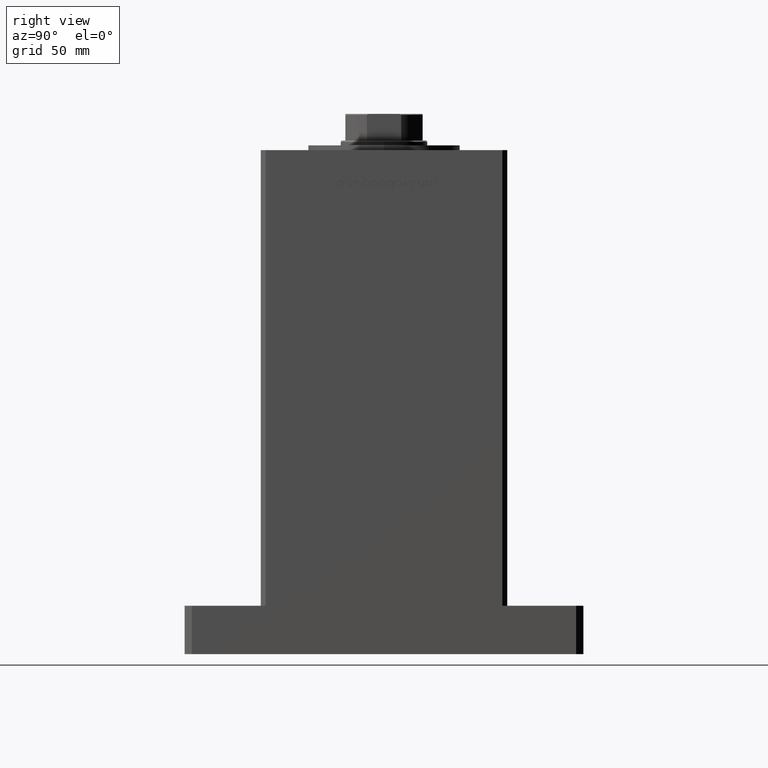
[diagram: clean part render]
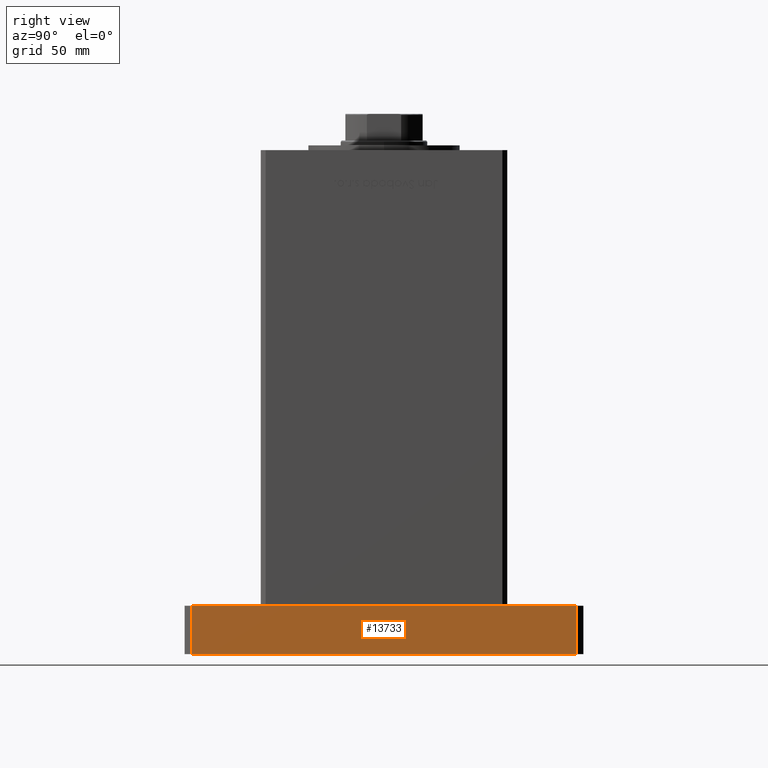
[diagram: same view with one face highlighted and labeled with its STEP entity id]
A machine part, right view. The second image highlights one B-rep face of the part: STEP entity #13733.
In plain terms, the highlighted planar face has unit normal (-1, 0, 0).
Its self-contained STEP definition (entity closure, byte-faithful):
#764 = EDGE_CURVE ( 'NONE', #2638, #32459, #9594, .T. ) ;
#2288 = CARTESIAN_POINT ( 'NONE',  ( 60.00000000000000000, -79.49999999999990052, 0.000000000000000000 ) ) ;
#2442 = CARTESIAN_POINT ( 'NONE',  ( 60.00000000000000711, 79.50000000000001421, 20.00000000000000000 ) ) ;
#2638 = VERTEX_POINT ( 'NONE', #2288 ) ;
#5932 = FACE_OUTER_BOUND ( 'NONE', #14089, .T. ) ;
#9594 = LINE ( 'NONE', #51899, #12291 ) ;
#11710 = ORIENTED_EDGE ( 'NONE', *, *, #764, .T. ) ;
#12291 = VECTOR ( 'NONE', #39706, 1000.000000000000000 ) ;
#13733 = ADVANCED_FACE ( 'NONE', ( #5932 ), #14856, .F. ) ;
#14089 = EDGE_LOOP ( 'NONE', ( #11710, #47829, #49348, #36636 ) ) ;
#14328 = CARTESIAN_POINT ( 'NONE',  ( 60.00000000000000000, -79.49999999999990052, 20.00000000000000000 ) ) ;
#14856 = PLANE ( 'NONE',  #28285 ) ;
#15120 = DIRECTION ( 'NONE',  ( -4.364084216293856438E-17, -1.000000000000000000, 0.000000000000000000 ) ) ;
#16451 = EDGE_CURVE ( 'NONE', #43947, #16711, #42141, .T. ) ;
#16711 = VERTEX_POINT ( 'NONE', #2442 ) ;
#18645 = CARTESIAN_POINT ( 'NONE',  ( 60.00000000000000711, 79.50000000000001421, 0.000000000000000000 ) ) ;
#20308 = DIRECTION ( 'NONE',  ( -0.000000000000000000, -0.000000000000000000, -1.000000000000000000 ) ) ;
#21121 = DIRECTION ( 'NONE',  ( -0.000000000000000000, -0.000000000000000000, -1.000000000000000000 ) ) ;
#28285 = AXIS2_PLACEMENT_3D ( 'NONE', #14328, #35752, #15120 ) ;
#29798 = CARTESIAN_POINT ( 'NONE',  ( 60.00000000000000711, 79.50000000000001421, 20.00000000000000000 ) ) ;
#30128 = CARTESIAN_POINT ( 'NONE',  ( 60.00000000000000000, -79.49999999999990052, 20.00000000000000000 ) ) ;
#31524 = EDGE_CURVE ( 'NONE', #16711, #32459, #33062, .T. ) ;
#31526 = EDGE_CURVE ( 'NONE', #43947, #2638, #33596, .T. ) ;
#32459 = VERTEX_POINT ( 'NONE', #18645 ) ;
#32656 = VECTOR ( 'NONE', #20308, 1000.000000000000000 ) ;
#33062 = LINE ( 'NONE', #29798, #53418 ) ;
#33596 = LINE ( 'NONE', #45287, #32656 ) ;
#35752 = DIRECTION ( 'NONE',  ( -1.000000000000000000, 4.364084216293856438E-17, 0.000000000000000000 ) ) ;
#36636 = ORIENTED_EDGE ( 'NONE', *, *, #31526, .T. ) ;
#39706 = DIRECTION ( 'NONE',  ( 4.364084216293856438E-17, 1.000000000000000000, 0.000000000000000000 ) ) ;
#40398 = VECTOR ( 'NONE', #41871, 1000.000000000000000 ) ;
#41871 = DIRECTION ( 'NONE',  ( 4.364084216293856438E-17, 1.000000000000000000, 0.000000000000000000 ) ) ;
#42141 = LINE ( 'NONE', #49735, #40398 ) ;
#43947 = VERTEX_POINT ( 'NONE', #30128 ) ;
#45287 = CARTESIAN_POINT ( 'NONE',  ( 60.00000000000000000, -79.49999999999990052, 20.00000000000000000 ) ) ;
#47829 = ORIENTED_EDGE ( 'NONE', *, *, #31524, .F. ) ;
#49348 = ORIENTED_EDGE ( 'NONE', *, *, #16451, .F. ) ;
#49735 = CARTESIAN_POINT ( 'NONE',  ( 60.00000000000000000, -79.49999999999990052, 20.00000000000000000 ) ) ;
#51899 = CARTESIAN_POINT ( 'NONE',  ( 60.00000000000000000, -79.49999999999990052, 0.000000000000000000 ) ) ;
#53418 = VECTOR ( 'NONE', #21121, 1000.000000000000000 ) ;